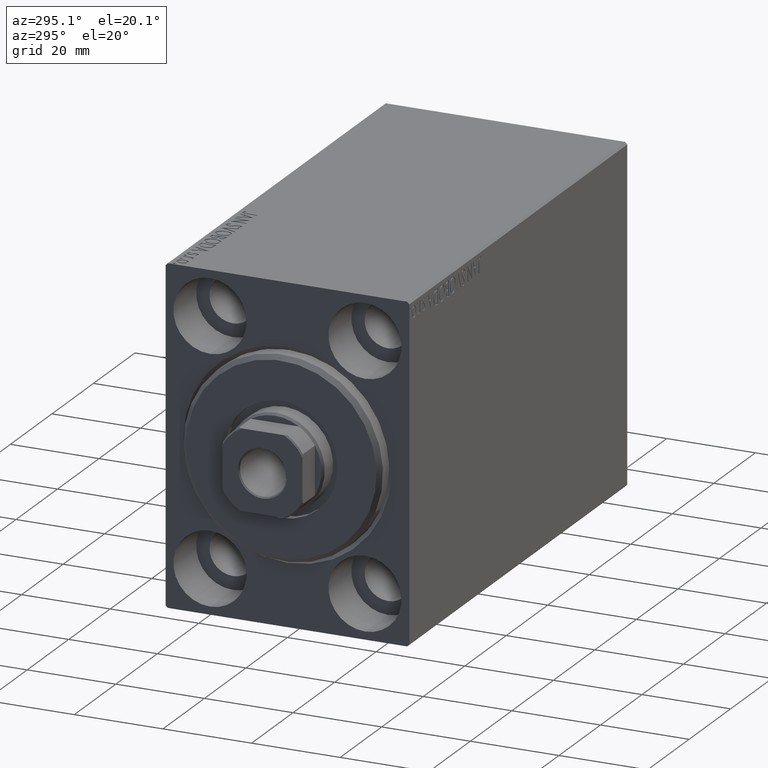
[diagram: clean part render]
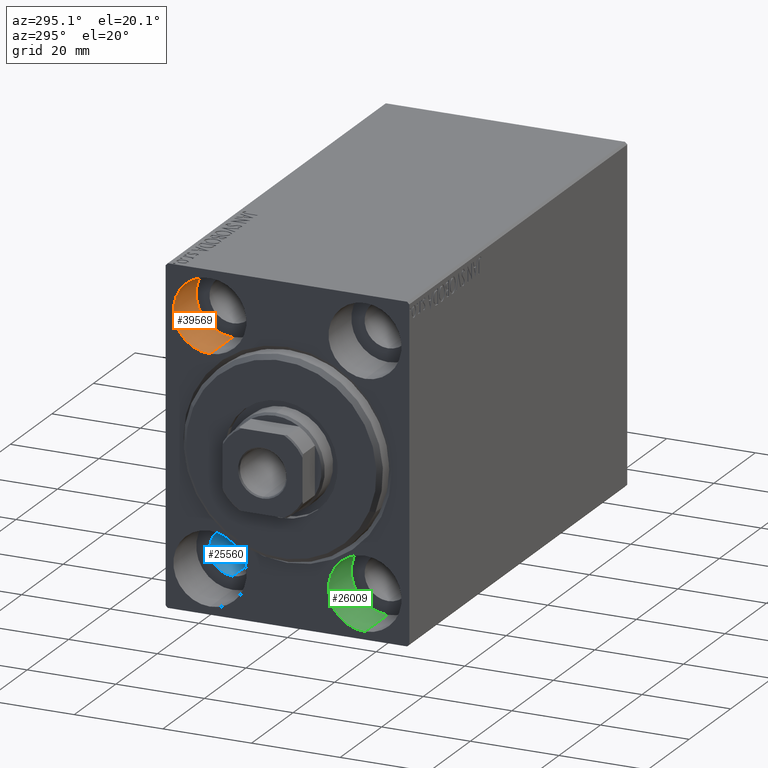
[diagram: same view with three faces highlighted in distinct colors, each labeled with its STEP entity id]
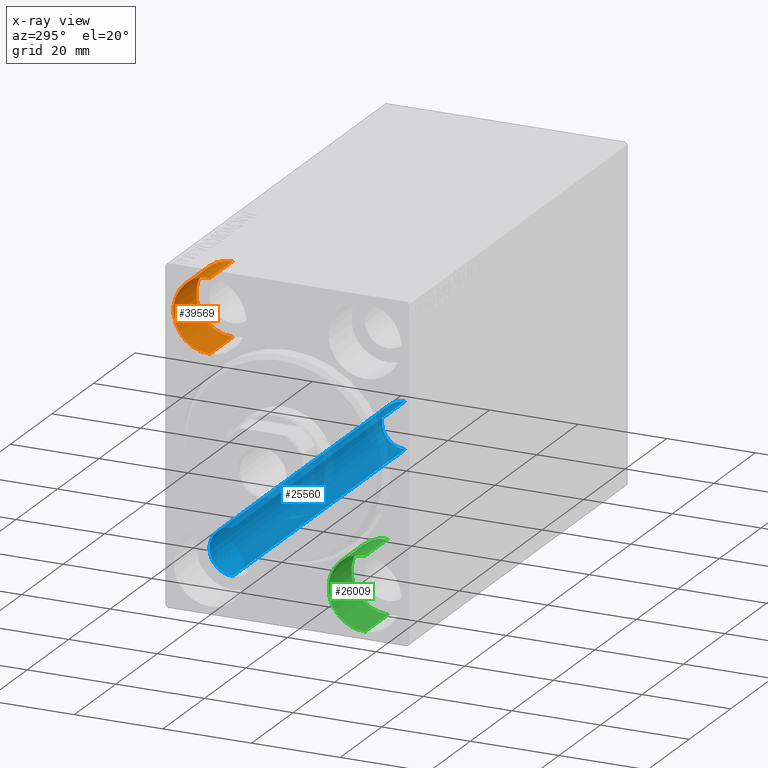
[diagram: x-ray of the same camera — body ghosted, the three highlighted faces saturated]
A machine part, auxiliary view with three faces highlighted in distinct colors.
The next image is the same camera in x-ray (body ghosted, the three faces saturated) — at least one of them is partly hidden behind the body in this view.
Their STEP definitions:

[orange] entity #39569 — the highlighted cylindrical surface (partial cylindrical patch) has radius 8.25 mm, axis along (-1, -0, -0).
#285 = VECTOR ( 'NONE', #18093, 1000.000000000000000 ) ;
#2803 = CARTESIAN_POINT ( 'NONE',  ( 11.00000000000000000, 17.50000000000000355, 27.49999999999999645 ) ) ;
#3162 = CARTESIAN_POINT ( 'NONE',  ( 11.00000000000000000, 17.50000000000000355, 35.74999999999999289 ) ) ;
#3351 = CARTESIAN_POINT ( 'NONE',  ( 11.00000000000000000, 17.50000000000000355, 35.74999999999999289 ) ) ;
#4496 = CIRCLE ( 'NONE', #8727, 8.249999999999992895 ) ;
#6074 = AXIS2_PLACEMENT_3D ( 'NONE', #6999, #14244, #27937 ) ;
#6314 = DIRECTION ( 'NONE',  ( -1.000000000000000000, -0.000000000000000000, -0.000000000000000000 ) ) ;
#6339 = VECTOR ( 'NONE', #33129, 1000.000000000000000 ) ;
#6462 = EDGE_CURVE ( 'NONE', #28719, #28678, #32183, .T. ) ;
#6999 = CARTESIAN_POINT ( 'NONE',  ( 0.000000000000000000, 17.50000000000000355, 27.49999999999999645 ) ) ;
#7228 = EDGE_CURVE ( 'NONE', #21927, #28719, #4496, .T. ) ;
#7799 = CARTESIAN_POINT ( 'NONE',  ( 11.00000000000000000, 17.50000000000000355, 19.25000000000000000 ) ) ;
#7855 = ORIENTED_EDGE ( 'NONE', *, *, #7228, .F. ) ;
#8213 = ORIENTED_EDGE ( 'NONE', *, *, #6462, .F. ) ;
#8727 = AXIS2_PLACEMENT_3D ( 'NONE', #24019, #38118, #24235 ) ;
#9819 = DIRECTION ( 'NONE',  ( 0.000000000000000000, 0.000000000000000000, 1.000000000000000000 ) ) ;
#14244 = DIRECTION ( 'NONE',  ( -1.000000000000000000, 0.000000000000000000, 0.000000000000000000 ) ) ;
#14767 = AXIS2_PLACEMENT_3D ( 'NONE', #2803, #6314, #9819 ) ;
#16655 = FACE_OUTER_BOUND ( 'NONE', #21153, .T. ) ;
#17183 = CARTESIAN_POINT ( 'NONE',  ( 0.000000000000000000, 17.50000000000000355, 35.74999999999999289 ) ) ;
#17292 = EDGE_CURVE ( 'NONE', #25081, #28678, #34211, .T. ) ;
#18093 = DIRECTION ( 'NONE',  ( -1.000000000000000000, -0.000000000000000000, -0.000000000000000000 ) ) ;
#19692 = LINE ( 'NONE', #3162, #6339 ) ;
#21153 = EDGE_LOOP ( 'NONE', ( #8213, #7855, #33323, #33869 ) ) ;
#21927 = VERTEX_POINT ( 'NONE', #3351 ) ;
#24019 = CARTESIAN_POINT ( 'NONE',  ( 11.00000000000000000, 17.50000000000000355, 27.49999999999999645 ) ) ;
#24235 = DIRECTION ( 'NONE',  ( 0.000000000000000000, 0.000000000000000000, 1.000000000000000000 ) ) ;
#25081 = VERTEX_POINT ( 'NONE', #17183 ) ;
#27937 = DIRECTION ( 'NONE',  ( 0.000000000000000000, 0.000000000000000000, 1.000000000000000000 ) ) ;
#28678 = VERTEX_POINT ( 'NONE', #41309 ) ;
#28719 = VERTEX_POINT ( 'NONE', #7799 ) ;
#32183 = LINE ( 'NONE', #35712, #285 ) ;
#33129 = DIRECTION ( 'NONE',  ( -1.000000000000000000, -0.000000000000000000, -0.000000000000000000 ) ) ;
#33190 = EDGE_CURVE ( 'NONE', #21927, #25081, #19692, .T. ) ;
#33323 = ORIENTED_EDGE ( 'NONE', *, *, #33190, .T. ) ;
#33869 = ORIENTED_EDGE ( 'NONE', *, *, #17292, .T. ) ;
#34211 = CIRCLE ( 'NONE', #6074, 8.249999999999992895 ) ;
#35712 = CARTESIAN_POINT ( 'NONE',  ( 11.00000000000000000, 17.50000000000000355, 19.25000000000000000 ) ) ;
#38118 = DIRECTION ( 'NONE',  ( -1.000000000000000000, 0.000000000000000000, 0.000000000000000000 ) ) ;
#39569 = ADVANCED_FACE ( 'NONE', ( #16655 ), #39609, .F. ) ;
#39609 = CYLINDRICAL_SURFACE ( 'NONE', #14767, 8.249999999999992895 ) ;
#41309 = CARTESIAN_POINT ( 'NONE',  ( 0.000000000000000000, 17.50000000000000355, 19.25000000000000000 ) ) ;

[blue] entity #25560 — the highlighted cylindrical surface (edge-blend (fillet) strip) has radius 5.25 mm, axis along (-1, -0, -0).
#1306 = CARTESIAN_POINT ( 'NONE',  ( 105.0000000000000000, 17.49999999999999645, -22.25000000000000355 ) ) ;
#2985 = ORIENTED_EDGE ( 'NONE', *, *, #30779, .F. ) ;
#3792 = DIRECTION ( 'NONE',  ( -1.000000000000000000, 0.000000000000000000, 0.000000000000000000 ) ) ;
#4343 = DIRECTION ( 'NONE',  ( 0.000000000000000000, 0.000000000000000000, 1.000000000000000000 ) ) ;
#4538 = DIRECTION ( 'NONE',  ( -1.000000000000000000, -0.000000000000000000, -0.000000000000000000 ) ) ;
#4844 = VECTOR ( 'NONE', #4538, 1000.000000000000000 ) ;
#7001 = EDGE_CURVE ( 'NONE', #26327, #27702, #34754, .T. ) ;
#9846 = VECTOR ( 'NONE', #25544, 1000.000000000000000 ) ;
#10933 = CARTESIAN_POINT ( 'NONE',  ( 105.0000000000000000, 17.49999999999999645, -27.50000000000000355 ) ) ;
#12598 = VERTEX_POINT ( 'NONE', #14807 ) ;
#14051 = CARTESIAN_POINT ( 'NONE',  ( 94.00000000000000000, 17.49999999999999645, -27.50000000000000355 ) ) ;
#14686 = AXIS2_PLACEMENT_3D ( 'NONE', #10933, #24402, #4343 ) ;
#14807 = CARTESIAN_POINT ( 'NONE',  ( 94.00000000000000000, 17.49999999999999645, -32.75000000000000000 ) ) ;
#15180 = ORIENTED_EDGE ( 'NONE', *, *, #32631, .T. ) ;
#17413 = AXIS2_PLACEMENT_3D ( 'NONE', #14051, #27530, #27960 ) ;
#17621 = ORIENTED_EDGE ( 'NONE', *, *, #7001, .T. ) ;
#17889 = CARTESIAN_POINT ( 'NONE',  ( 10.99999999999999645, 17.49999999999999645, -27.50000000000000355 ) ) ;
#18592 = VERTEX_POINT ( 'NONE', #41058 ) ;
#20719 = EDGE_LOOP ( 'NONE', ( #2985, #34409, #15180, #17621 ) ) ;
#21437 = EDGE_CURVE ( 'NONE', #18592, #12598, #39950, .T. ) ;
#22828 = AXIS2_PLACEMENT_3D ( 'NONE', #17889, #3792, #24721 ) ;
#24166 = CARTESIAN_POINT ( 'NONE',  ( 105.0000000000000000, 17.49999999999999645, -32.75000000000000000 ) ) ;
#24402 = DIRECTION ( 'NONE',  ( -1.000000000000000000, -0.000000000000000000, -0.000000000000000000 ) ) ;
#24721 = DIRECTION ( 'NONE',  ( 0.000000000000000000, 0.000000000000000000, 1.000000000000000000 ) ) ;
#25544 = DIRECTION ( 'NONE',  ( -1.000000000000000000, -0.000000000000000000, -0.000000000000000000 ) ) ;
#25560 = ADVANCED_FACE ( 'NONE', ( #31011 ), #41145, .F. ) ;
#26327 = VERTEX_POINT ( 'NONE', #29511 ) ;
#27482 = CARTESIAN_POINT ( 'NONE',  ( 10.99999999999999645, 17.49999999999999645, -32.75000000000000000 ) ) ;
#27530 = DIRECTION ( 'NONE',  ( -1.000000000000000000, -0.000000000000000000, -0.000000000000000000 ) ) ;
#27702 = VERTEX_POINT ( 'NONE', #27482 ) ;
#27960 = DIRECTION ( 'NONE',  ( 0.000000000000000000, 0.000000000000000000, -1.000000000000000000 ) ) ;
#29511 = CARTESIAN_POINT ( 'NONE',  ( 10.99999999999999645, 17.49999999999999645, -22.25000000000000355 ) ) ;
#30779 = EDGE_CURVE ( 'NONE', #12598, #27702, #41560, .T. ) ;
#31011 = FACE_OUTER_BOUND ( 'NONE', #20719, .T. ) ;
#32631 = EDGE_CURVE ( 'NONE', #18592, #26327, #34586, .T. ) ;
#34409 = ORIENTED_EDGE ( 'NONE', *, *, #21437, .F. ) ;
#34586 = LINE ( 'NONE', #1306, #9846 ) ;
#34754 = CIRCLE ( 'NONE', #22828, 5.250000000000000888 ) ;
#39950 = CIRCLE ( 'NONE', #17413, 5.249999999999997335 ) ;
#41058 = CARTESIAN_POINT ( 'NONE',  ( 94.00000000000000000, 17.49999999999999645, -22.25000000000000355 ) ) ;
#41145 = CYLINDRICAL_SURFACE ( 'NONE', #14686, 5.250000000000000888 ) ;
#41560 = LINE ( 'NONE', #24166, #4844 ) ;

[green] entity #26009 — the highlighted cylindrical surface (partial cylindrical patch) has radius 8.25 mm, axis along (-1, -0, -0).
#1577 = EDGE_CURVE ( 'NONE', #4167, #2224, #31074, .T. ) ;
#2224 = VERTEX_POINT ( 'NONE', #34449 ) ;
#4167 = VERTEX_POINT ( 'NONE', #13034 ) ;
#5152 = LINE ( 'NONE', #21693, #25997 ) ;
#5613 = DIRECTION ( 'NONE',  ( -1.000000000000000000, 0.000000000000000000, 0.000000000000000000 ) ) ;
#6189 = CIRCLE ( 'NONE', #23774, 8.250000000000000000 ) ;
#6678 = EDGE_CURVE ( 'NONE', #21149, #4167, #40966, .T. ) ;
#9232 = AXIS2_PLACEMENT_3D ( 'NONE', #13448, #40567, #26920 ) ;
#13034 = CARTESIAN_POINT ( 'NONE',  ( 0.000000000000000000, -17.50000000000000355, -19.25000000000000355 ) ) ;
#13448 = CARTESIAN_POINT ( 'NONE',  ( 0.000000000000000000, -17.50000000000000355, -27.50000000000000355 ) ) ;
#14822 = ORIENTED_EDGE ( 'NONE', *, *, #6678, .T. ) ;
#15500 = DIRECTION ( 'NONE',  ( -1.000000000000000000, -0.000000000000000000, -0.000000000000000000 ) ) ;
#17542 = AXIS2_PLACEMENT_3D ( 'NONE', #40556, #20289, #26910 ) ;
#20289 = DIRECTION ( 'NONE',  ( -1.000000000000000000, -0.000000000000000000, -0.000000000000000000 ) ) ;
#20720 = CYLINDRICAL_SURFACE ( 'NONE', #17542, 8.250000000000000000 ) ;
#21149 = VERTEX_POINT ( 'NONE', #21182 ) ;
#21182 = CARTESIAN_POINT ( 'NONE',  ( 11.00000000000000000, -17.50000000000000355, -19.25000000000000355 ) ) ;
#21693 = CARTESIAN_POINT ( 'NONE',  ( 11.00000000000000000, -17.50000000000000355, -35.75000000000000711 ) ) ;
#22156 = EDGE_LOOP ( 'NONE', ( #40131, #33081, #14822, #26653 ) ) ;
#22363 = FACE_OUTER_BOUND ( 'NONE', #22156, .T. ) ;
#23115 = EDGE_CURVE ( 'NONE', #21149, #32686, #6189, .T. ) ;
#23774 = AXIS2_PLACEMENT_3D ( 'NONE', #36452, #5613, #29193 ) ;
#24011 = CARTESIAN_POINT ( 'NONE',  ( 11.00000000000000000, -17.50000000000000355, -19.25000000000000355 ) ) ;
#25926 = EDGE_CURVE ( 'NONE', #32686, #2224, #5152, .T. ) ;
#25997 = VECTOR ( 'NONE', #15500, 1000.000000000000000 ) ;
#26009 = ADVANCED_FACE ( 'NONE', ( #22363 ), #20720, .F. ) ;
#26653 = ORIENTED_EDGE ( 'NONE', *, *, #1577, .T. ) ;
#26910 = DIRECTION ( 'NONE',  ( 0.000000000000000000, 0.000000000000000000, 1.000000000000000000 ) ) ;
#26920 = DIRECTION ( 'NONE',  ( 0.000000000000000000, 0.000000000000000000, 1.000000000000000000 ) ) ;
#29065 = CARTESIAN_POINT ( 'NONE',  ( 11.00000000000000000, -17.50000000000000355, -35.75000000000000711 ) ) ;
#29193 = DIRECTION ( 'NONE',  ( 0.000000000000000000, 0.000000000000000000, 1.000000000000000000 ) ) ;
#31074 = CIRCLE ( 'NONE', #9232, 8.250000000000000000 ) ;
#31233 = VECTOR ( 'NONE', #34133, 1000.000000000000000 ) ;
#32686 = VERTEX_POINT ( 'NONE', #29065 ) ;
#33081 = ORIENTED_EDGE ( 'NONE', *, *, #23115, .F. ) ;
#34133 = DIRECTION ( 'NONE',  ( -1.000000000000000000, -0.000000000000000000, -0.000000000000000000 ) ) ;
#34449 = CARTESIAN_POINT ( 'NONE',  ( 0.000000000000000000, -17.50000000000000355, -35.75000000000000711 ) ) ;
#36452 = CARTESIAN_POINT ( 'NONE',  ( 11.00000000000000000, -17.50000000000000355, -27.50000000000000355 ) ) ;
#40131 = ORIENTED_EDGE ( 'NONE', *, *, #25926, .F. ) ;
#40556 = CARTESIAN_POINT ( 'NONE',  ( 11.00000000000000000, -17.50000000000000355, -27.50000000000000355 ) ) ;
#40567 = DIRECTION ( 'NONE',  ( -1.000000000000000000, 0.000000000000000000, 0.000000000000000000 ) ) ;
#40966 = LINE ( 'NONE', #24011, #31233 ) ;